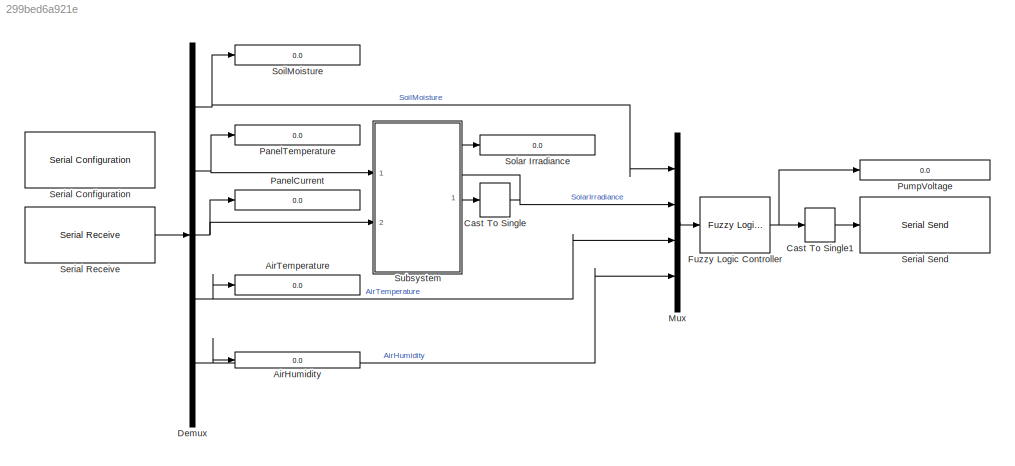
MODEL slx_299bed6a921e
KIND model
CONFIG AbsTol = auto
CONFIG EnableMultiTasking = off
CONFIG FixedStep = auto
CONFIG MaxStep = auto
CONFIG MinStep = auto
CONFIG RelTol = 1e-3
CONFIG SampleTimeConstraint = Unconstrained
CONFIG Solver = VariableStepAuto
CONFIG SolverName = VariableStepAuto
CONFIG StartTime = 0.0
CONFIG StopTime = inf
BLOCK [Display] AirHumidity
  Decimation = 1
  Format = decimal (Stored Integer)
  Ports = [1]
BLOCK [Display] AirTemperature
  Decimation = 1
  Format = decimal (Stored Integer)
  Ports = [1]
BLOCK [DataTypeConversion] Cast To Single
  OutDataTypeStr = single
  RndMeth = Floor
  SaturateOnIntegerOverflow = off
BLOCK [DataTypeConversion] Cast To Single1
  OutDataTypeStr = single
  RndMeth = Floor
  SaturateOnIntegerOverflow = off
BLOCK [Demux] Demux
  DisplayOption = bar
  Outputs = 5
  Ports = [1, 5]
BLOCK [Reference] Fuzzy Logic Controller  REF=fuzblock/Fuzzy Logic   (lib defined in mdl_858b3b3e7478)
Controller
  Ports = [1, 1]
  SourceBlock = fuzblock/Fuzzy Logic \nController
  SourceProductBaseCode = FL
  SourceProductName = Fuzzy Logic Toolbox
  SourceType = Fuzzy Inference System
BLOCK [Mux] Mux
  DisplayOption = bar
  Ports = [4, 1]
BLOCK [Display] PanelCurrent
  Decimation = 1
  Format = decimal (Stored Integer)
  Ports = [1]
BLOCK [Display] PanelTemperature
  Decimation = 1
  Format = decimal (Stored Integer)
  Ports = [1]
BLOCK [Display] PumpVoltage
  Decimation = 1
  Format = decimal (Stored Integer)
  Ports = [1]
BLOCK [Reference] Serial Configuration  REF=instrumentlib/Serial Configuration
  Ports = []
  Priority = -200000
  SourceBlock = instrumentlib/Serial Configuration
  SourceProductBaseCode = IC
  SourceProductName = Instrument Control Toolbox
  SourceType = Serial Configuration
BLOCK [Reference] Serial Receive  REF=instrumentlib/Serial Receive
  Ports = [0, 1]
  SourceBlock = instrumentlib/Serial Receive
  SourceProductBaseCode = IC
  SourceProductName = Instrument Control Toolbox
  SourceType = Serial Receive
BLOCK [Reference] Serial Send  REF=instrumentlib/Serial Send
  Ports = [1]
  SourceBlock = instrumentlib/Serial Send
  SourceProductBaseCode = IC
  SourceProductName = Instrument Control Toolbox
  SourceType = Serial Send
BLOCK [Display] SoilMoisture
  Decimation = 1
  Format = decimal (Stored Integer)
  Ports = [1]
BLOCK [Display] Solar Irradiance
  Decimation = 1
  Format = decimal (Stored Integer)
  Ports = [1]
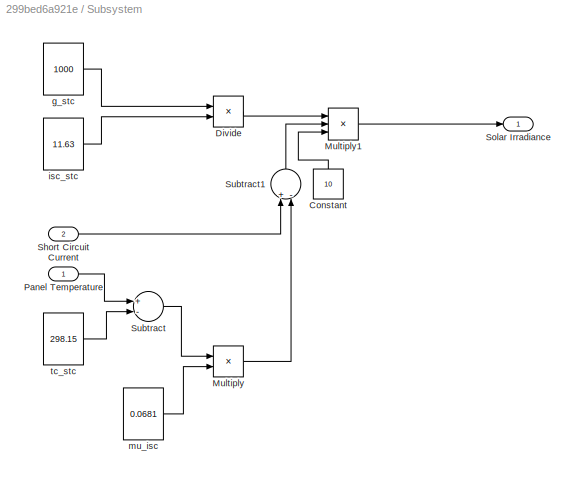
BLOCK [SubSystem] Subsystem
  Ports = [2, 1]
  RequestExecContextInheritance = off
BLOCK [Constant] Subsystem/Constant
  Value = 10
BLOCK [Product] Subsystem/Divide
  InputSameDT = off
  Inputs = */
  OutDataTypeStr = Inherit: Inherit via internal rule
  Ports = [2, 1]
  RndMeth = Floor
  SaturateOnIntegerOverflow = off
BLOCK [Product] Subsystem/Multiply
  InputSameDT = off
  OutDataTypeStr = Inherit: Inherit via internal rule
  Ports = [2, 1]
  RndMeth = Floor
  SaturateOnIntegerOverflow = off
BLOCK [Product] Subsystem/Multiply1
  InputSameDT = off
  Inputs = 3
  OutDataTypeStr = Inherit: Inherit via internal rule
  Ports = [3, 1]
  RndMeth = Floor
  SaturateOnIntegerOverflow = off
BLOCK [Inport] Subsystem/Panel Temperature
  IconDisplay = Port number
BLOCK [Inport] Subsystem/Short Circuit Current
  IconDisplay = Port number
  Port = 2
BLOCK [Outport] Subsystem/Solar Irradiance
  IconDisplay = Port number
BLOCK [Sum] Subsystem/Subtract
  InputSameDT = off
  Inputs = +-
  OutDataTypeStr = Inherit: Inherit via internal rule
  Ports = [2, 1]
  SaturateOnIntegerOverflow = off
BLOCK [Sum] Subsystem/Subtract1
  InputSameDT = off
  Inputs = +-
  OutDataTypeStr = Inherit: Inherit via internal rule
  Ports = [2, 1]
  SaturateOnIntegerOverflow = off
BLOCK [Constant] Subsystem/g_stc
  Value = 1000
BLOCK [Constant] Subsystem/isc_stc
  Value = 11.63
BLOCK [Constant] Subsystem/mu_isc
  Value = 0.0681
BLOCK [Constant] Subsystem/tc_stc
  Value = 298.15
LINE Cast To Single1:1 -> Serial Send:1
NET Cast To Single:1 -> Mux:2, Solar Irradiance:1
NET Demux:1 -> Mux:1, SoilMoisture:1
NET Demux:2 -> PanelTemperature:1, Subsystem:1
NET Demux:3 -> PanelCurrent:1, Subsystem:2
NET Demux:4 -> AirTemperature:1, Mux:3
NET Demux:5 -> AirHumidity:1, Mux:4
NET Fuzzy Logic Controller:1 -> Cast To Single1:1, PumpVoltage:1
LINE Mux:1 -> Fuzzy Logic Controller:1
LINE Serial Receive:1 -> Demux:1
LINE Subsystem/Constant:1 -> Subsystem/Multiply1:3
LINE Subsystem/Divide:1 -> Subsystem/Multiply1:1
LINE Subsystem/Multiply1:1 -> Subsystem/Solar Irradiance:1
LINE Subsystem/Multiply:1 -> Subsystem/Subtract1:2
LINE Subsystem/Panel Temperature:1 -> Subsystem/Subtract:1
LINE Subsystem/Short Circuit Current:1 -> Subsystem/Subtract1:1
LINE Subsystem/Subtract1:1 -> Subsystem/Multiply1:2
LINE Subsystem/Subtract:1 -> Subsystem/Multiply:1
LINE Subsystem/g_stc:1 -> Subsystem/Divide:1
LINE Subsystem/isc_stc:1 -> Subsystem/Divide:2
LINE Subsystem/mu_isc:1 -> Subsystem/Multiply:2
LINE Subsystem/tc_stc:1 -> Subsystem/Subtract:2
LINE Subsystem:1 -> Cast To Single:1
note: NET lines group one-source signal fan-out (src -> all destinations, sorted); 1:1 wires keep LINE
